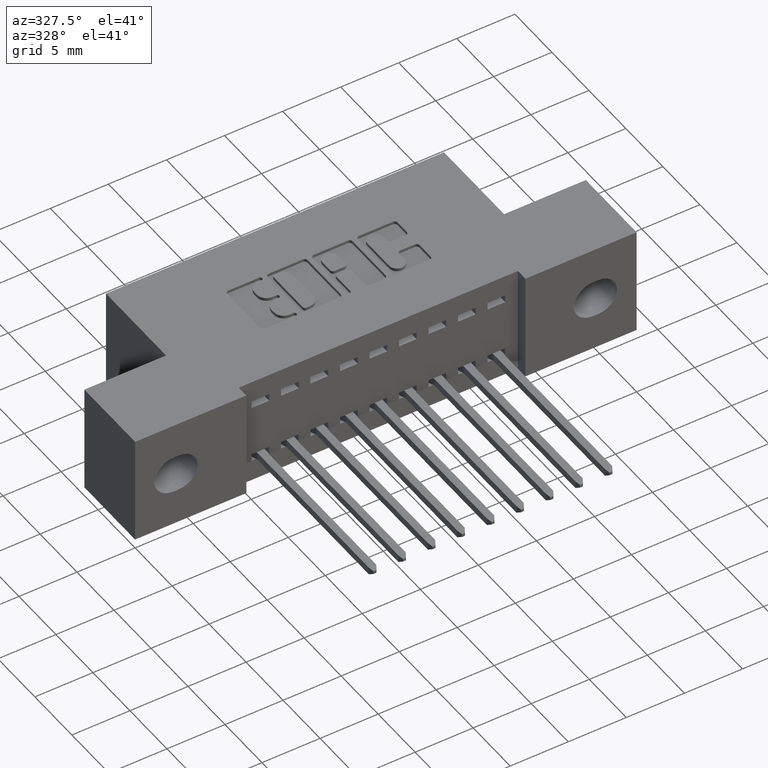
[diagram: clean part render]
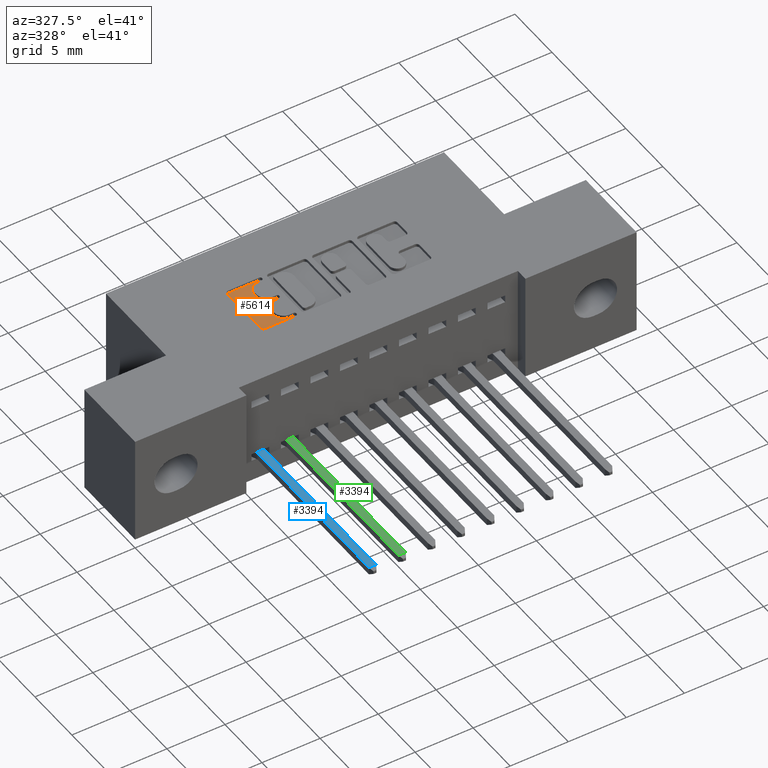
[diagram: same view with three faces highlighted in distinct colors, each labeled with its STEP entity id]
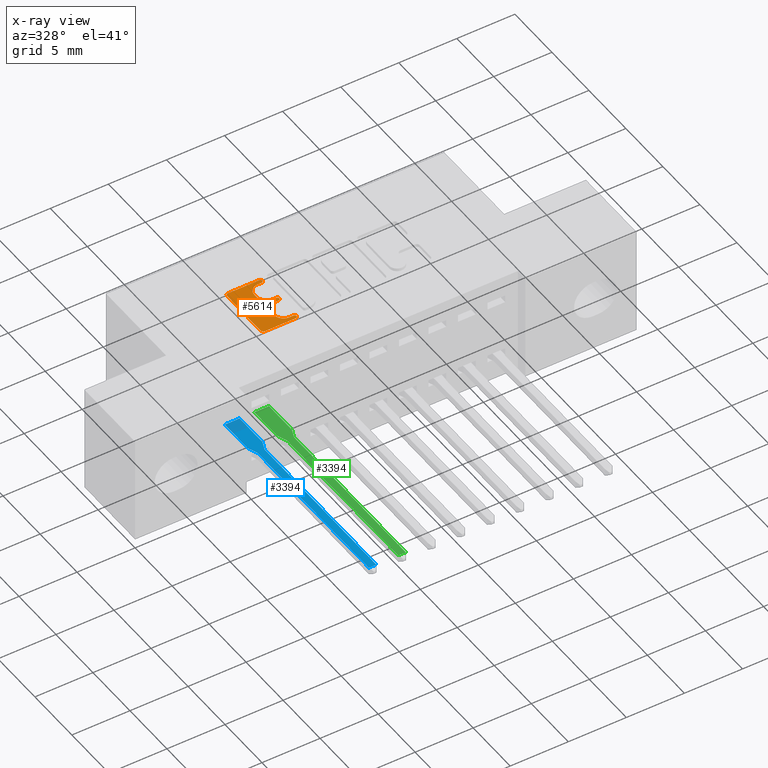
[diagram: x-ray of the same camera — body ghosted, the three highlighted faces saturated]
A machine part, auxiliary view with three faces highlighted in distinct colors.
The next image is the same camera in x-ray (body ghosted, the three faces saturated) — at least one of them is partly hidden behind the body in this view.
Their STEP definitions:

[orange] entity #5614 — the highlighted planar face has unit normal (0, 0, 1).
#34 = ORIENTED_EDGE ( 'NONE', *, *, #2166, .T. ) ;
#73 = VERTEX_POINT ( 'NONE', #7664 ) ;
#128 = LINE ( 'NONE', #9140, #6097 ) ;
#155 = VERTEX_POINT ( 'NONE', #4761 ) ;
#163 = EDGE_CURVE ( 'NONE', #7030, #1953, #1251, .T. ) ;
#251 = VERTEX_POINT ( 'NONE', #6139 ) ;
#262 = DIRECTION ( 'NONE',  ( 1.000000000000000000, 0.0000000000000000000, 0.0000000000000000000 ) ) ;
#263 = DIRECTION ( 'NONE',  ( 1.000000000000000000, 0.0000000000000000000, 0.0000000000000000000 ) ) ;
#321 = VERTEX_POINT ( 'NONE', #6061 ) ;
#391 = CARTESIAN_POINT ( 'NONE',  ( 0.6831336065353355000, 0.2237142671046479200, -0.01000000000000000000 ) ) ;
#439 = CIRCLE ( 'NONE', #2869, 0.009815670203805868300 ) ;
#479 = VECTOR ( 'NONE', #263, 39.37007874015748100 ) ;
#513 = DIRECTION ( 'NONE',  ( -0.0000000000000000000, 0.0000000000000000000, 1.000000000000000000 ) ) ;
#519 = AXIS2_PLACEMENT_3D ( 'NONE', #558, #5371, #7394 ) ;
#558 = CARTESIAN_POINT ( 'NONE',  ( 0.6696370600050840500, 0.3532811137948583300, -0.01000000000000000000 ) ) ;
#732 = VERTEX_POINT ( 'NONE', #9145 ) ;
#755 = VERTEX_POINT ( 'NONE', #6430 ) ;
#783 = DIRECTION ( 'NONE',  ( 1.000000000000000000, 0.0000000000000000000, 0.0000000000000000000 ) ) ;
#793 = DIRECTION ( 'NONE',  ( -0.0000000000000000000, 0.0000000000000000000, 1.000000000000000000 ) ) ;
#808 = CARTESIAN_POINT ( 'NONE',  ( 0.6831336065353099700, 0.3150000000000203200, -0.01000000000000000000 ) ) ;
#926 = VERTEX_POINT ( 'NONE', #8553 ) ;
#950 = EDGE_CURVE ( 'NONE', #8813, #73, #4071, .T. ) ;
#1001 = EDGE_CURVE ( 'NONE', #7092, #755, #3582, .T. ) ;
#1170 = EDGE_CURVE ( 'NONE', #2939, #7092, #8144, .T. ) ;
#1187 = DIRECTION ( 'NONE',  ( 1.000000000000000000, 0.0000000000000000000, 0.0000000000000000000 ) ) ;
#1229 = LINE ( 'NONE', #6932, #5386 ) ;
#1246 = CARTESIAN_POINT ( 'NONE',  ( 0.6831336065353513800, 0.3994147637527357100, -0.01000000000000000000 ) ) ;
#1251 = LINE ( 'NONE', #1929, #3136 ) ;
#1324 = ORIENTED_EDGE ( 'NONE', *, *, #7208, .T. ) ;
#1379 = CARTESIAN_POINT ( 'NONE',  ( 0.6831336065353099700, 0.3218709691426838700, -0.01000000000000000000 ) ) ;
#1458 = DIRECTION ( 'NONE',  ( 1.000000000000000000, 0.0000000000000000000, 0.0000000000000000000 ) ) ;
#1488 = DIRECTION ( 'NONE',  ( 1.000000000000000000, 0.0000000000000000000, 0.0000000000000000000 ) ) ;
#1727 = ORIENTED_EDGE ( 'NONE', *, *, #7829, .T. ) ;
#1759 = VERTEX_POINT ( 'NONE', #3005 ) ;
#1780 = CARTESIAN_POINT ( 'NONE',  ( 0.5690264404161153900, 0.4033410318342101100, -0.01000000000000000000 ) ) ;
#1840 = AXIS2_PLACEMENT_3D ( 'NONE', #4327, #4324, #4315 ) ;
#1844 = DIRECTION ( 'NONE',  ( 0.0000000000000000000, 1.000000000000000000, -0.0000000000000000000 ) ) ;
#1885 = ORIENTED_EDGE ( 'NONE', *, *, #5858, .T. ) ;
#1929 = CARTESIAN_POINT ( 'NONE',  ( 0.5690264404161153900, 0.0000000000000000000, -0.01000000000000000000 ) ) ;
#1953 = VERTEX_POINT ( 'NONE', #8937 ) ;
#1978 = AXIS2_PLACEMENT_3D ( 'NONE', #8626, #1993, #1488 ) ;
#1993 = DIRECTION ( 'NONE',  ( -0.0000000000000000000, 0.0000000000000000000, 1.000000000000000000 ) ) ;
#2034 = FACE_OUTER_BOUND ( 'NONE', #8905, .T. ) ;
#2166 = EDGE_CURVE ( 'NONE', #6264, #9404, #8918, .T. ) ;
#2273 = DIRECTION ( 'NONE',  ( 1.000000000000000000, 0.0000000000000000000, 0.0000000000000000000 ) ) ;
#2284 = DIRECTION ( 'NONE',  ( -0.0000000000000000000, 0.0000000000000000000, 1.000000000000000000 ) ) ;
#2292 = CARTESIAN_POINT ( 'NONE',  ( 0.6696370600051095900, 0.2619953808994903700, -0.01000000000000000000 ) ) ;
#2348 = DIRECTION ( 'NONE',  ( 1.000000000000000000, 7.203446383881649800E-015, 0.0000000000000000000 ) ) ;
#2496 = CARTESIAN_POINT ( 'NONE',  ( 0.6900045756779735800, 0.3150000000000203200, -0.01000000000000000000 ) ) ;
#2619 = LINE ( 'NONE', #3412, #479 ) ;
#2668 = AXIS2_PLACEMENT_3D ( 'NONE', #5597, #5572, #5570 ) ;
#2859 = LINE ( 'NONE', #6498, #6464 ) ;
#2869 = AXIS2_PLACEMENT_3D ( 'NONE', #7060, #513, #262 ) ;
#2912 = CARTESIAN_POINT ( 'NONE',  ( 0.6831336064154143200, 0.2168432979619857000, -0.01000000000000000000 ) ) ;
#2939 = VERTEX_POINT ( 'NONE', #2496 ) ;
#3005 = CARTESIAN_POINT ( 'NONE',  ( 0.6696370600051095900, 0.2305852362473085900, -0.01000000000000000000 ) ) ;
#3094 = CARTESIAN_POINT ( 'NONE',  ( 0.6831336064154143200, 0.2305852362473102000, -0.01000000000000000000 ) ) ;
#3136 = VECTOR ( 'NONE', #3382, 39.37007874015748100 ) ;
#3196 = VERTEX_POINT ( 'NONE', #4630 ) ;
#3216 = ORIENTED_EDGE ( 'NONE', *, *, #1170, .T. ) ;
#3260 = VERTEX_POINT ( 'NONE', #3094 ) ;
#3382 = DIRECTION ( 'NONE',  ( 0.0000000000000000000, -1.000000000000000000, 0.0000000000000000000 ) ) ;
#3412 = CARTESIAN_POINT ( 'NONE',  ( 0.0000000000000000000, 0.3994147637527357100, -0.01000000000000000000 ) ) ;
#3582 = LINE ( 'NONE', #7852, #7364 ) ;
#3590 = EDGE_CURVE ( 'NONE', #1953, #5420, #439, .T. ) ;
#3815 = EDGE_CURVE ( 'NONE', #321, #755, #7555, .T. ) ;
#3878 = ORIENTED_EDGE ( 'NONE', *, *, #3930, .T. ) ;
#3925 = DIRECTION ( 'NONE',  ( 0.0000000000000000000, 1.000000000000000000, -0.0000000000000000000 ) ) ;
#3930 = EDGE_CURVE ( 'NONE', #3196, #7030, #4640, .T. ) ;
#4000 = CIRCLE ( 'NONE', #8567, 0.006870969142648433200 ) ;
#4071 = CIRCLE ( 'NONE', #4268, 0.006870969142648433200 ) ;
#4112 = EDGE_CURVE ( 'NONE', #5280, #3196, #8885, .T. ) ;
#4205 = CIRCLE ( 'NONE', #7205, 0.006870969142663594700 ) ;
#4268 = AXIS2_PLACEMENT_3D ( 'NONE', #7143, #6283, #6066 ) ;
#4315 = DIRECTION ( 'NONE',  ( 1.000000000000000000, 0.0000000000000000000, 0.0000000000000000000 ) ) ;
#4324 = DIRECTION ( 'NONE',  ( -0.0000000000000000000, 0.0000000000000000000, 1.000000000000000000 ) ) ;
#4327 = CARTESIAN_POINT ( 'NONE',  ( 0.6831336065353355000, 0.2237142671046479200, -0.01000000000000000000 ) ) ;
#4468 = ORIENTED_EDGE ( 'NONE', *, *, #950, .T. ) ;
#4584 = CIRCLE ( 'NONE', #4902, 0.03141014465218178200 ) ;
#4630 = CARTESIAN_POINT ( 'NONE',  ( 0.5788421106199380700, 0.4131567020380327300, -0.01000000000000000000 ) ) ;
#4632 = ORIENTED_EDGE ( 'NONE', *, *, #8102, .T. ) ;
#4640 = CIRCLE ( 'NONE', #6777, 0.009815670203822599700 ) ;
#4692 = CARTESIAN_POINT ( 'NONE',  ( 0.6696370600050840500, 0.2767188862052005200, -0.01000000000000000000 ) ) ;
#4761 = CARTESIAN_POINT ( 'NONE',  ( 0.6900045756779977800, 0.2237142671046479200, -0.01000000000000000000 ) ) ;
#4875 = EDGE_CURVE ( 'NONE', #155, #3260, #6151, .T. ) ;
#4902 = AXIS2_PLACEMENT_3D ( 'NONE', #2292, #2284, #2273 ) ;
#5100 = ORIENTED_EDGE ( 'NONE', *, *, #8007, .T. ) ;
#5133 = AXIS2_PLACEMENT_3D ( 'NONE', #7931, #7915, #6468 ) ;
#5197 = CARTESIAN_POINT ( 'NONE',  ( 0.6696370600050840500, 0.3081290308573568200, -0.01000000000000000000 ) ) ;
#5280 = VERTEX_POINT ( 'NONE', #9423 ) ;
#5371 = DIRECTION ( 'NONE',  ( -0.0000000000000000000, 0.0000000000000000000, 1.000000000000000000 ) ) ;
#5379 = ORIENTED_EDGE ( 'NONE', *, *, #4875, .T. ) ;
#5386 = VECTOR ( 'NONE', #2348, 39.37007874015748100 ) ;
#5420 = VERTEX_POINT ( 'NONE', #8775 ) ;
#5429 = VECTOR ( 'NONE', #5694, 39.37007874015748100 ) ;
#5436 = ORIENTED_EDGE ( 'NONE', *, *, #1001, .T. ) ;
#5439 = DIRECTION ( 'NONE',  ( 1.000000000000000000, 0.0000000000000000000, 0.0000000000000000000 ) ) ;
#5570 = DIRECTION ( 'NONE',  ( 1.000000000000000000, 0.0000000000000000000, 0.0000000000000000000 ) ) ;
#5572 = DIRECTION ( 'NONE',  ( -0.0000000000000000000, 0.0000000000000000000, 1.000000000000000000 ) ) ;
#5597 = CARTESIAN_POINT ( 'NONE',  ( 0.6696370600051254600, 0.3680046191005197900, -0.01000000000000000000 ) ) ;
#5614 = ADVANCED_FACE ( 'NONE', ( #2034 ), #7954, .T. ) ;
#5667 = LINE ( 'NONE', #5737, #5429 ) ;
#5694 = DIRECTION ( 'NONE',  ( -1.000000000000000000, -1.189163988687022500E-013, 0.0000000000000000000 ) ) ;
#5737 = CARTESIAN_POINT ( 'NONE',  ( -2.742036592680941800E-014, 0.2305852362472289600, -0.01000000000000000000 ) ) ;
#5841 = DIRECTION ( 'NONE',  ( -0.0000000000000000000, 0.0000000000000000000, 1.000000000000000000 ) ) ;
#5858 = EDGE_CURVE ( 'NONE', #73, #5280, #4000, .T. ) ;
#5956 = ORIENTED_EDGE ( 'NONE', *, *, #4112, .T. ) ;
#6061 = CARTESIAN_POINT ( 'NONE',  ( 0.6382269153529096500, 0.3532811137948583300, -0.01000000000000000000 ) ) ;
#6066 = DIRECTION ( 'NONE',  ( 1.000000000000000000, 0.0000000000000000000, 0.0000000000000000000 ) ) ;
#6097 = VECTOR ( 'NONE', #3925, 39.37007874015748100 ) ;
#6139 = CARTESIAN_POINT ( 'NONE',  ( 0.6382269153529096500, 0.3680046191005197900, -0.01000000000000000000 ) ) ;
#6151 = CIRCLE ( 'NONE', #1840, 0.006870969142662229500 ) ;
#6154 = EDGE_CURVE ( 'NONE', #3260, #1759, #5667, .T. ) ;
#6168 = EDGE_CURVE ( 'NONE', #8926, #251, #7399, .T. ) ;
#6264 = VERTEX_POINT ( 'NONE', #5197 ) ;
#6283 = DIRECTION ( 'NONE',  ( -0.0000000000000000000, 0.0000000000000000000, 1.000000000000000000 ) ) ;
#6368 = ORIENTED_EDGE ( 'NONE', *, *, #163, .T. ) ;
#6430 = CARTESIAN_POINT ( 'NONE',  ( 0.6696370600050840500, 0.3218709691426838700, -0.01000000000000000000 ) ) ;
#6464 = VECTOR ( 'NONE', #1844, 39.37007874015748100 ) ;
#6468 = DIRECTION ( 'NONE',  ( 1.000000000000000000, 0.0000000000000000000, 0.0000000000000000000 ) ) ;
#6498 = CARTESIAN_POINT ( 'NONE',  ( 0.6382269153529277500, 0.0000000000000000000, -0.01000000000000000000 ) ) ;
#6610 = AXIS2_PLACEMENT_3D ( 'NONE', #4692, #9790, #5439 ) ;
#6777 = AXIS2_PLACEMENT_3D ( 'NONE', #9678, #9631, #9565 ) ;
#6778 = CIRCLE ( 'NONE', #6610, 0.03141014465215624000 ) ;
#6829 = VERTEX_POINT ( 'NONE', #2912 ) ;
#6865 = ORIENTED_EDGE ( 'NONE', *, *, #6154, .T. ) ;
#6876 = DIRECTION ( 'NONE',  ( 1.000000000000000000, 0.0000000000000000000, 0.0000000000000000000 ) ) ;
#6889 = DIRECTION ( 'NONE',  ( -0.0000000000000000000, 0.0000000000000000000, 1.000000000000000000 ) ) ;
#6911 = CARTESIAN_POINT ( 'NONE',  ( 0.6831336065353513800, 0.4062857328953862800, -0.01000000000000000000 ) ) ;
#6921 = EDGE_CURVE ( 'NONE', #926, #1759, #4584, .T. ) ;
#6932 = CARTESIAN_POINT ( 'NONE',  ( -1.562019070573201600E-015, 0.2168432979619807900, -0.01000000000000000000 ) ) ;
#7008 = VECTOR ( 'NONE', #1458, 39.37007874015748100 ) ;
#7030 = VERTEX_POINT ( 'NONE', #1780 ) ;
#7060 = CARTESIAN_POINT ( 'NONE',  ( 0.5788421106199221900, 0.2266589681657899300, -0.01000000000000000000 ) ) ;
#7092 = VERTEX_POINT ( 'NONE', #1379 ) ;
#7143 = CARTESIAN_POINT ( 'NONE',  ( 0.6831336065353513800, 0.4062857328953862800, -0.01000000000000000000 ) ) ;
#7148 = AXIS2_PLACEMENT_3D ( 'NONE', #391, #5841, #1187 ) ;
#7163 = CARTESIAN_POINT ( 'NONE',  ( 0.0000000000000000000, 0.3081290308573568200, -0.01000000000000000000 ) ) ;
#7205 = AXIS2_PLACEMENT_3D ( 'NONE', #808, #793, #783 ) ;
#7208 = EDGE_CURVE ( 'NONE', #9404, #2939, #4205, .T. ) ;
#7227 = ORIENTED_EDGE ( 'NONE', *, *, #7992, .T. ) ;
#7265 = DIRECTION ( 'NONE',  ( -1.000000000000000000, 0.0000000000000000000, 0.0000000000000000000 ) ) ;
#7353 = CARTESIAN_POINT ( 'NONE',  ( 0.6831336064153887800, 0.3081290308573568200, -0.01000000000000000000 ) ) ;
#7364 = VECTOR ( 'NONE', #7265, 39.37007874015748100 ) ;
#7394 = DIRECTION ( 'NONE',  ( 1.000000000000000000, 0.0000000000000000000, 0.0000000000000000000 ) ) ;
#7399 = CIRCLE ( 'NONE', #2668, 0.03141014465221578900 ) ;
#7473 = CIRCLE ( 'NONE', #7148, 0.006870969142662229500 ) ;
#7555 = CIRCLE ( 'NONE', #519, 0.03141014465217440600 ) ;
#7664 = CARTESIAN_POINT ( 'NONE',  ( 0.6900045756779997800, 0.4062857328953862800, -0.01000000000000000000 ) ) ;
#7829 = EDGE_CURVE ( 'NONE', #321, #251, #128, .T. ) ;
#7852 = CARTESIAN_POINT ( 'NONE',  ( 0.0000000000000000000, 0.3218709691426838700, -0.01000000000000000000 ) ) ;
#7915 = DIRECTION ( 'NONE',  ( -0.0000000000000000000, 0.0000000000000000000, 1.000000000000000000 ) ) ;
#7931 = CARTESIAN_POINT ( 'NONE',  ( 0.0000000000000000000, 0.0000000000000000000, -0.01000000000000000000 ) ) ;
#7954 = PLANE ( 'NONE',  #5133 ) ;
#7992 = EDGE_CURVE ( 'NONE', #8926, #8813, #2619, .T. ) ;
#8007 = EDGE_CURVE ( 'NONE', #926, #732, #2859, .T. ) ;
#8050 = ORIENTED_EDGE ( 'NONE', *, *, #3590, .T. ) ;
#8102 = EDGE_CURVE ( 'NONE', #6829, #155, #7473, .T. ) ;
#8144 = CIRCLE ( 'NONE', #1978, 0.006870969142663594700 ) ;
#8197 = CARTESIAN_POINT ( 'NONE',  ( 0.6696370600051254600, 0.3994147637527357100, -0.01000000000000000000 ) ) ;
#8352 = EDGE_CURVE ( 'NONE', #5420, #6829, #1229, .T. ) ;
#8553 = CARTESIAN_POINT ( 'NONE',  ( 0.6382269153529277500, 0.2619953808994903700, -0.01000000000000000000 ) ) ;
#8567 = AXIS2_PLACEMENT_3D ( 'NONE', #6911, #6889, #6876 ) ;
#8626 = CARTESIAN_POINT ( 'NONE',  ( 0.6831336065353099700, 0.3150000000000203200, -0.01000000000000000000 ) ) ;
#8660 = VECTOR ( 'NONE', #8723, 39.37007874015748100 ) ;
#8665 = CARTESIAN_POINT ( 'NONE',  ( 0.0000000000000000000, 0.4131567020380327300, -0.01000000000000000000 ) ) ;
#8671 = ORIENTED_EDGE ( 'NONE', *, *, #9037, .F. ) ;
#8723 = DIRECTION ( 'NONE',  ( -1.000000000000000000, 0.0000000000000000000, 0.0000000000000000000 ) ) ;
#8775 = CARTESIAN_POINT ( 'NONE',  ( 0.5788421106199185300, 0.2168432979619849500, -0.01000000000000000000 ) ) ;
#8813 = VERTEX_POINT ( 'NONE', #1246 ) ;
#8882 = ORIENTED_EDGE ( 'NONE', *, *, #8352, .T. ) ;
#8885 = LINE ( 'NONE', #8665, #8660 ) ;
#8905 = EDGE_LOOP ( 'NONE', ( #9520, #7227, #4468, #1885, #5956, #3878, #6368, #8050, #8882, #4632, #5379, #6865, #9497, #5100, #8671, #34, #1324, #3216, #5436, #9527, #1727 ) ) ;
#8918 = LINE ( 'NONE', #7163, #7008 ) ;
#8926 = VERTEX_POINT ( 'NONE', #8197 ) ;
#8937 = CARTESIAN_POINT ( 'NONE',  ( 0.5690264404161153900, 0.2266589681657899300, -0.01000000000000000000 ) ) ;
#9037 = EDGE_CURVE ( 'NONE', #6264, #732, #6778, .T. ) ;
#9140 = CARTESIAN_POINT ( 'NONE',  ( 0.6382269153529096500, 0.0000000000000000000, -0.01000000000000000000 ) ) ;
#9145 = CARTESIAN_POINT ( 'NONE',  ( 0.6382269153529277500, 0.2767188862052005200, -0.01000000000000000000 ) ) ;
#9404 = VERTEX_POINT ( 'NONE', #7353 ) ;
#9423 = CARTESIAN_POINT ( 'NONE',  ( 0.6831336065353513800, 0.4131567020380327300, -0.01000000000000000000 ) ) ;
#9497 = ORIENTED_EDGE ( 'NONE', *, *, #6921, .F. ) ;
#9520 = ORIENTED_EDGE ( 'NONE', *, *, #6168, .F. ) ;
#9527 = ORIENTED_EDGE ( 'NONE', *, *, #3815, .F. ) ;
#9565 = DIRECTION ( 'NONE',  ( 1.000000000000000000, 0.0000000000000000000, 0.0000000000000000000 ) ) ;
#9631 = DIRECTION ( 'NONE',  ( -0.0000000000000000000, 0.0000000000000000000, 1.000000000000000000 ) ) ;
#9678 = CARTESIAN_POINT ( 'NONE',  ( 0.5788421106199380700, 0.4033410318342101100, -0.01000000000000000000 ) ) ;
#9790 = DIRECTION ( 'NONE',  ( -0.0000000000000000000, 0.0000000000000000000, 1.000000000000000000 ) ) ;

[blue] entity #3394 — the highlighted planar face has unit normal (0, -0, -1).
#206 = AXIS2_PLACEMENT_3D ( 'NONE', #2020, #3406, #3615 ) ;
#215 = CARTESIAN_POINT ( 'NONE',  ( 0.6132132034356083700, 0.03749999999999242800, 0.01249999999999993500 ) ) ;
#400 = EDGE_CURVE ( 'NONE', #1043, #1596, #879, .T. ) ;
#497 = VECTOR ( 'NONE', #1145, 39.37007874015748100 ) ;
#539 = CARTESIAN_POINT ( 'NONE',  ( 0.4582132034355987900, 0.03749999999999423900, -0.02499999999999987000 ) ) ;
#879 = LINE ( 'NONE', #6872, #8718 ) ;
#912 = CARTESIAN_POINT ( 'NONE',  ( 0.6132132034356083700, 0.03749999999999447500, -0.01249999999999993500 ) ) ;
#1008 = VERTEX_POINT ( 'NONE', #7038 ) ;
#1043 = VERTEX_POINT ( 'NONE', #3465 ) ;
#1125 = CARTESIAN_POINT ( 'NONE',  ( 1.205213203435595800, 0.03749999999999219200, -0.01249999999999993500 ) ) ;
#1145 = DIRECTION ( 'NONE',  ( -2.116696985329355200E-014, 1.327134286314529600E-016, -1.000000000000000000 ) ) ;
#1265 = EDGE_CURVE ( 'NONE', #5157, #6732, #9160, .T. ) ;
#1290 = EDGE_CURVE ( 'NONE', #1043, #6732, #3461, .T. ) ;
#1453 = EDGE_CURVE ( 'NONE', #5035, #1008, #9263, .T. ) ;
#1503 = VECTOR ( 'NONE', #3699, 39.37007874015748100 ) ;
#1596 = VERTEX_POINT ( 'NONE', #1599 ) ;
#1599 = CARTESIAN_POINT ( 'NONE',  ( 0.6094800926593313400, 0.03749999999999242800, 0.01322293775314374400 ) ) ;
#1821 = DIRECTION ( 'NONE',  ( 5.703758558017122900E-015, -1.000000000000000000, 1.327134286314613900E-016 ) ) ;
#1825 = DIRECTION ( 'NONE',  ( 5.703758558017122900E-015, -1.000000000000000000, 1.327134286314613900E-016 ) ) ;
#2020 = CARTESIAN_POINT ( 'NONE',  ( 0.5802132034356098900, 0.03749999999999423900, -0.02499999999999987000 ) ) ;
#2203 = FACE_OUTER_BOUND ( 'NONE', #4274, .T. ) ;
#2270 = CARTESIAN_POINT ( 'NONE',  ( 0.6094800926593330100, 0.03749999999999447500, -0.01322293775314374400 ) ) ;
#2834 = CIRCLE ( 'NONE', #6416, 0.01000000000000003000 ) ;
#3192 = CARTESIAN_POINT ( 'NONE',  ( 1.205213203435595800, 0.03749999999999267100, -0.01249999999999993500 ) ) ;
#3219 = VECTOR ( 'NONE', #5678, 39.37007874015748100 ) ;
#3226 = VECTOR ( 'NONE', #3976, 39.37007874015748100 ) ;
#3332 = CARTESIAN_POINT ( 'NONE',  ( 0.4582132034355987900, 0.03749999999999423900, 0.02499999999999987000 ) ) ;
#3380 = LINE ( 'NONE', #3700, #1503 ) ;
#3394 = ADVANCED_FACE ( 'NONE', ( #2203 ), #5830, .F. ) ;
#3406 = DIRECTION ( 'NONE',  ( 5.301315481592240000E-015, -1.000000000000000000, -1.327134286315651700E-016 ) ) ;
#3461 = LINE ( 'NONE', #7702, #8701 ) ;
#3465 = CARTESIAN_POINT ( 'NONE',  ( 0.5802132034356045600, 0.03749999999999219200, 0.02499999999999987000 ) ) ;
#3584 = EDGE_CURVE ( 'NONE', #4365, #5035, #7108, .T. ) ;
#3615 = DIRECTION ( 'NONE',  ( -2.116696985329355200E-014, 1.327134286314529600E-016, -1.000000000000000000 ) ) ;
#3699 = DIRECTION ( 'NONE',  ( 1.000000000000000000, -5.301315481592247100E-015, 2.113198204599771600E-014 ) ) ;
#3700 = CARTESIAN_POINT ( 'NONE',  ( 0.4582132034355987900, 0.03749999999999423900, -0.02499999999999987000 ) ) ;
#3816 = VECTOR ( 'NONE', #9480, 39.37007874015748900 ) ;
#3913 = AXIS2_PLACEMENT_3D ( 'NONE', #8620, #1825, #7109 ) ;
#3976 = DIRECTION ( 'NONE',  ( 2.116696985329355200E-014, -1.327134286314529600E-016, 1.000000000000000000 ) ) ;
#4102 = EDGE_CURVE ( 'NONE', #6748, #4365, #6981, .T. ) ;
#4274 = EDGE_LOOP ( 'NONE', ( #6420, #6709, #6789, #6813, #8119, #8530, #8586, #8843, #9167, #9719 ) ) ;
#4365 = VERTEX_POINT ( 'NONE', #912 ) ;
#5035 = VERTEX_POINT ( 'NONE', #2270 ) ;
#5050 = LINE ( 'NONE', #215, #3219 ) ;
#5157 = VERTEX_POINT ( 'NONE', #539 ) ;
#5234 = VECTOR ( 'NONE', #8737, 39.37007874015748100 ) ;
#5300 = VERTEX_POINT ( 'NONE', #9334 ) ;
#5457 = VERTEX_POINT ( 'NONE', #8595 ) ;
#5678 = DIRECTION ( 'NONE',  ( 1.000000000000000000, -4.899158106491877200E-015, 2.117049754956636300E-014 ) ) ;
#5830 = PLANE ( 'NONE',  #206 ) ;
#6416 = AXIS2_PLACEMENT_3D ( 'NONE', #6472, #1821, #7204 ) ;
#6420 = ORIENTED_EDGE ( 'NONE', *, *, #8578, .T. ) ;
#6472 = CARTESIAN_POINT ( 'NONE',  ( 0.6132132034356083700, 0.03749999999999242800, 0.02249999999999996400 ) ) ;
#6609 = EDGE_CURVE ( 'NONE', #5157, #1008, #3380, .T. ) ;
#6709 = ORIENTED_EDGE ( 'NONE', *, *, #7146, .T. ) ;
#6732 = VERTEX_POINT ( 'NONE', #3332 ) ;
#6748 = VERTEX_POINT ( 'NONE', #3192 ) ;
#6789 = ORIENTED_EDGE ( 'NONE', *, *, #4102, .T. ) ;
#6813 = ORIENTED_EDGE ( 'NONE', *, *, #3584, .T. ) ;
#6872 = CARTESIAN_POINT ( 'NONE',  ( 0.5802132034356045600, 0.03749999999999242800, 0.02499999999999987000 ) ) ;
#6939 = LINE ( 'NONE', #1125, #497 ) ;
#6981 = LINE ( 'NONE', #8755, #5234 ) ;
#7038 = CARTESIAN_POINT ( 'NONE',  ( 0.5802132034356098900, 0.03749999999999423900, -0.02499999999999987000 ) ) ;
#7108 = CIRCLE ( 'NONE', #3913, 0.009999999999999962000 ) ;
#7109 = DIRECTION ( 'NONE',  ( 1.000000000000000000, -4.695363739110470100E-015, 2.134256245050213700E-014 ) ) ;
#7146 = EDGE_CURVE ( 'NONE', #5300, #6748, #6939, .T. ) ;
#7204 = DIRECTION ( 'NONE',  ( -1.000000000000000000, 4.695363739110437800E-015, -2.134256245050199500E-014 ) ) ;
#7491 = DIRECTION ( 'NONE',  ( 0.9277062246856283600, -4.597912085683818800E-015, -0.3733110776276781200 ) ) ;
#7702 = CARTESIAN_POINT ( 'NONE',  ( 0.4582132034355987900, 0.03749999999999423900, 0.02499999999999987000 ) ) ;
#8119 = ORIENTED_EDGE ( 'NONE', *, *, #1453, .T. ) ;
#8387 = CARTESIAN_POINT ( 'NONE',  ( 0.4582132034356028400, 0.03749999999999423900, -0.05764965543462898700 ) ) ;
#8530 = ORIENTED_EDGE ( 'NONE', *, *, #6609, .F. ) ;
#8578 = EDGE_CURVE ( 'NONE', #5457, #5300, #5050, .T. ) ;
#8586 = ORIENTED_EDGE ( 'NONE', *, *, #1265, .T. ) ;
#8595 = CARTESIAN_POINT ( 'NONE',  ( 0.6132132034356083700, 0.03749999999999242800, 0.01249999999999993500 ) ) ;
#8620 = CARTESIAN_POINT ( 'NONE',  ( 0.6132132034356083700, 0.03749999999999447500, -0.02250000000000010000 ) ) ;
#8639 = DIRECTION ( 'NONE',  ( -1.000000000000000000, 5.301315481592247100E-015, -2.120195766058952000E-014 ) ) ;
#8701 = VECTOR ( 'NONE', #8639, 39.37007874015748100 ) ;
#8718 = VECTOR ( 'NONE', #7491, 39.37007874015748900 ) ;
#8737 = DIRECTION ( 'NONE',  ( -1.000000000000000000, 4.899158106491877200E-015, -2.116344215702074400E-014 ) ) ;
#8755 = CARTESIAN_POINT ( 'NONE',  ( 0.6132132034356083700, 0.03749999999999447500, -0.01249999999999993500 ) ) ;
#8843 = ORIENTED_EDGE ( 'NONE', *, *, #1290, .F. ) ;
#8965 = CARTESIAN_POINT ( 'NONE',  ( 0.5802132034356098900, 0.03749999999999447500, -0.02499999999999987000 ) ) ;
#9160 = LINE ( 'NONE', #8387, #3226 ) ;
#9167 = ORIENTED_EDGE ( 'NONE', *, *, #400, .T. ) ;
#9242 = EDGE_CURVE ( 'NONE', #1596, #5457, #2834, .T. ) ;
#9263 = LINE ( 'NONE', #8965, #3816 ) ;
#9334 = CARTESIAN_POINT ( 'NONE',  ( 1.205213203435595800, 0.03749999999999068700, 0.01249999999999993500 ) ) ;
#9480 = DIRECTION ( 'NONE',  ( -0.9277062246856137000, 4.696998871799879800E-015, -0.3733110776277146500 ) ) ;
#9719 = ORIENTED_EDGE ( 'NONE', *, *, #9242, .T. ) ;

[green] entity #3394 — the highlighted planar face has unit normal (0, -0, -1).
#206 = AXIS2_PLACEMENT_3D ( 'NONE', #2020, #3406, #3615 ) ;
#215 = CARTESIAN_POINT ( 'NONE',  ( 0.6132132034356083700, 0.03749999999999242800, 0.01249999999999993500 ) ) ;
#400 = EDGE_CURVE ( 'NONE', #1043, #1596, #879, .T. ) ;
#497 = VECTOR ( 'NONE', #1145, 39.37007874015748100 ) ;
#539 = CARTESIAN_POINT ( 'NONE',  ( 0.4582132034355987900, 0.03749999999999423900, -0.02499999999999987000 ) ) ;
#879 = LINE ( 'NONE', #6872, #8718 ) ;
#912 = CARTESIAN_POINT ( 'NONE',  ( 0.6132132034356083700, 0.03749999999999447500, -0.01249999999999993500 ) ) ;
#1008 = VERTEX_POINT ( 'NONE', #7038 ) ;
#1043 = VERTEX_POINT ( 'NONE', #3465 ) ;
#1125 = CARTESIAN_POINT ( 'NONE',  ( 1.205213203435595800, 0.03749999999999219200, -0.01249999999999993500 ) ) ;
#1145 = DIRECTION ( 'NONE',  ( -2.116696985329355200E-014, 1.327134286314529600E-016, -1.000000000000000000 ) ) ;
#1265 = EDGE_CURVE ( 'NONE', #5157, #6732, #9160, .T. ) ;
#1290 = EDGE_CURVE ( 'NONE', #1043, #6732, #3461, .T. ) ;
#1453 = EDGE_CURVE ( 'NONE', #5035, #1008, #9263, .T. ) ;
#1503 = VECTOR ( 'NONE', #3699, 39.37007874015748100 ) ;
#1596 = VERTEX_POINT ( 'NONE', #1599 ) ;
#1599 = CARTESIAN_POINT ( 'NONE',  ( 0.6094800926593313400, 0.03749999999999242800, 0.01322293775314374400 ) ) ;
#1821 = DIRECTION ( 'NONE',  ( 5.703758558017122900E-015, -1.000000000000000000, 1.327134286314613900E-016 ) ) ;
#1825 = DIRECTION ( 'NONE',  ( 5.703758558017122900E-015, -1.000000000000000000, 1.327134286314613900E-016 ) ) ;
#2020 = CARTESIAN_POINT ( 'NONE',  ( 0.5802132034356098900, 0.03749999999999423900, -0.02499999999999987000 ) ) ;
#2203 = FACE_OUTER_BOUND ( 'NONE', #4274, .T. ) ;
#2270 = CARTESIAN_POINT ( 'NONE',  ( 0.6094800926593330100, 0.03749999999999447500, -0.01322293775314374400 ) ) ;
#2834 = CIRCLE ( 'NONE', #6416, 0.01000000000000003000 ) ;
#3192 = CARTESIAN_POINT ( 'NONE',  ( 1.205213203435595800, 0.03749999999999267100, -0.01249999999999993500 ) ) ;
#3219 = VECTOR ( 'NONE', #5678, 39.37007874015748100 ) ;
#3226 = VECTOR ( 'NONE', #3976, 39.37007874015748100 ) ;
#3332 = CARTESIAN_POINT ( 'NONE',  ( 0.4582132034355987900, 0.03749999999999423900, 0.02499999999999987000 ) ) ;
#3380 = LINE ( 'NONE', #3700, #1503 ) ;
#3394 = ADVANCED_FACE ( 'NONE', ( #2203 ), #5830, .F. ) ;
#3406 = DIRECTION ( 'NONE',  ( 5.301315481592240000E-015, -1.000000000000000000, -1.327134286315651700E-016 ) ) ;
#3461 = LINE ( 'NONE', #7702, #8701 ) ;
#3465 = CARTESIAN_POINT ( 'NONE',  ( 0.5802132034356045600, 0.03749999999999219200, 0.02499999999999987000 ) ) ;
#3584 = EDGE_CURVE ( 'NONE', #4365, #5035, #7108, .T. ) ;
#3615 = DIRECTION ( 'NONE',  ( -2.116696985329355200E-014, 1.327134286314529600E-016, -1.000000000000000000 ) ) ;
#3699 = DIRECTION ( 'NONE',  ( 1.000000000000000000, -5.301315481592247100E-015, 2.113198204599771600E-014 ) ) ;
#3700 = CARTESIAN_POINT ( 'NONE',  ( 0.4582132034355987900, 0.03749999999999423900, -0.02499999999999987000 ) ) ;
#3816 = VECTOR ( 'NONE', #9480, 39.37007874015748900 ) ;
#3913 = AXIS2_PLACEMENT_3D ( 'NONE', #8620, #1825, #7109 ) ;
#3976 = DIRECTION ( 'NONE',  ( 2.116696985329355200E-014, -1.327134286314529600E-016, 1.000000000000000000 ) ) ;
#4102 = EDGE_CURVE ( 'NONE', #6748, #4365, #6981, .T. ) ;
#4274 = EDGE_LOOP ( 'NONE', ( #6420, #6709, #6789, #6813, #8119, #8530, #8586, #8843, #9167, #9719 ) ) ;
#4365 = VERTEX_POINT ( 'NONE', #912 ) ;
#5035 = VERTEX_POINT ( 'NONE', #2270 ) ;
#5050 = LINE ( 'NONE', #215, #3219 ) ;
#5157 = VERTEX_POINT ( 'NONE', #539 ) ;
#5234 = VECTOR ( 'NONE', #8737, 39.37007874015748100 ) ;
#5300 = VERTEX_POINT ( 'NONE', #9334 ) ;
#5457 = VERTEX_POINT ( 'NONE', #8595 ) ;
#5678 = DIRECTION ( 'NONE',  ( 1.000000000000000000, -4.899158106491877200E-015, 2.117049754956636300E-014 ) ) ;
#5830 = PLANE ( 'NONE',  #206 ) ;
#6416 = AXIS2_PLACEMENT_3D ( 'NONE', #6472, #1821, #7204 ) ;
#6420 = ORIENTED_EDGE ( 'NONE', *, *, #8578, .T. ) ;
#6472 = CARTESIAN_POINT ( 'NONE',  ( 0.6132132034356083700, 0.03749999999999242800, 0.02249999999999996400 ) ) ;
#6609 = EDGE_CURVE ( 'NONE', #5157, #1008, #3380, .T. ) ;
#6709 = ORIENTED_EDGE ( 'NONE', *, *, #7146, .T. ) ;
#6732 = VERTEX_POINT ( 'NONE', #3332 ) ;
#6748 = VERTEX_POINT ( 'NONE', #3192 ) ;
#6789 = ORIENTED_EDGE ( 'NONE', *, *, #4102, .T. ) ;
#6813 = ORIENTED_EDGE ( 'NONE', *, *, #3584, .T. ) ;
#6872 = CARTESIAN_POINT ( 'NONE',  ( 0.5802132034356045600, 0.03749999999999242800, 0.02499999999999987000 ) ) ;
#6939 = LINE ( 'NONE', #1125, #497 ) ;
#6981 = LINE ( 'NONE', #8755, #5234 ) ;
#7038 = CARTESIAN_POINT ( 'NONE',  ( 0.5802132034356098900, 0.03749999999999423900, -0.02499999999999987000 ) ) ;
#7108 = CIRCLE ( 'NONE', #3913, 0.009999999999999962000 ) ;
#7109 = DIRECTION ( 'NONE',  ( 1.000000000000000000, -4.695363739110470100E-015, 2.134256245050213700E-014 ) ) ;
#7146 = EDGE_CURVE ( 'NONE', #5300, #6748, #6939, .T. ) ;
#7204 = DIRECTION ( 'NONE',  ( -1.000000000000000000, 4.695363739110437800E-015, -2.134256245050199500E-014 ) ) ;
#7491 = DIRECTION ( 'NONE',  ( 0.9277062246856283600, -4.597912085683818800E-015, -0.3733110776276781200 ) ) ;
#7702 = CARTESIAN_POINT ( 'NONE',  ( 0.4582132034355987900, 0.03749999999999423900, 0.02499999999999987000 ) ) ;
#8119 = ORIENTED_EDGE ( 'NONE', *, *, #1453, .T. ) ;
#8387 = CARTESIAN_POINT ( 'NONE',  ( 0.4582132034356028400, 0.03749999999999423900, -0.05764965543462898700 ) ) ;
#8530 = ORIENTED_EDGE ( 'NONE', *, *, #6609, .F. ) ;
#8578 = EDGE_CURVE ( 'NONE', #5457, #5300, #5050, .T. ) ;
#8586 = ORIENTED_EDGE ( 'NONE', *, *, #1265, .T. ) ;
#8595 = CARTESIAN_POINT ( 'NONE',  ( 0.6132132034356083700, 0.03749999999999242800, 0.01249999999999993500 ) ) ;
#8620 = CARTESIAN_POINT ( 'NONE',  ( 0.6132132034356083700, 0.03749999999999447500, -0.02250000000000010000 ) ) ;
#8639 = DIRECTION ( 'NONE',  ( -1.000000000000000000, 5.301315481592247100E-015, -2.120195766058952000E-014 ) ) ;
#8701 = VECTOR ( 'NONE', #8639, 39.37007874015748100 ) ;
#8718 = VECTOR ( 'NONE', #7491, 39.37007874015748900 ) ;
#8737 = DIRECTION ( 'NONE',  ( -1.000000000000000000, 4.899158106491877200E-015, -2.116344215702074400E-014 ) ) ;
#8755 = CARTESIAN_POINT ( 'NONE',  ( 0.6132132034356083700, 0.03749999999999447500, -0.01249999999999993500 ) ) ;
#8843 = ORIENTED_EDGE ( 'NONE', *, *, #1290, .F. ) ;
#8965 = CARTESIAN_POINT ( 'NONE',  ( 0.5802132034356098900, 0.03749999999999447500, -0.02499999999999987000 ) ) ;
#9160 = LINE ( 'NONE', #8387, #3226 ) ;
#9167 = ORIENTED_EDGE ( 'NONE', *, *, #400, .T. ) ;
#9242 = EDGE_CURVE ( 'NONE', #1596, #5457, #2834, .T. ) ;
#9263 = LINE ( 'NONE', #8965, #3816 ) ;
#9334 = CARTESIAN_POINT ( 'NONE',  ( 1.205213203435595800, 0.03749999999999068700, 0.01249999999999993500 ) ) ;
#9480 = DIRECTION ( 'NONE',  ( -0.9277062246856137000, 4.696998871799879800E-015, -0.3733110776277146500 ) ) ;
#9719 = ORIENTED_EDGE ( 'NONE', *, *, #9242, .T. ) ;